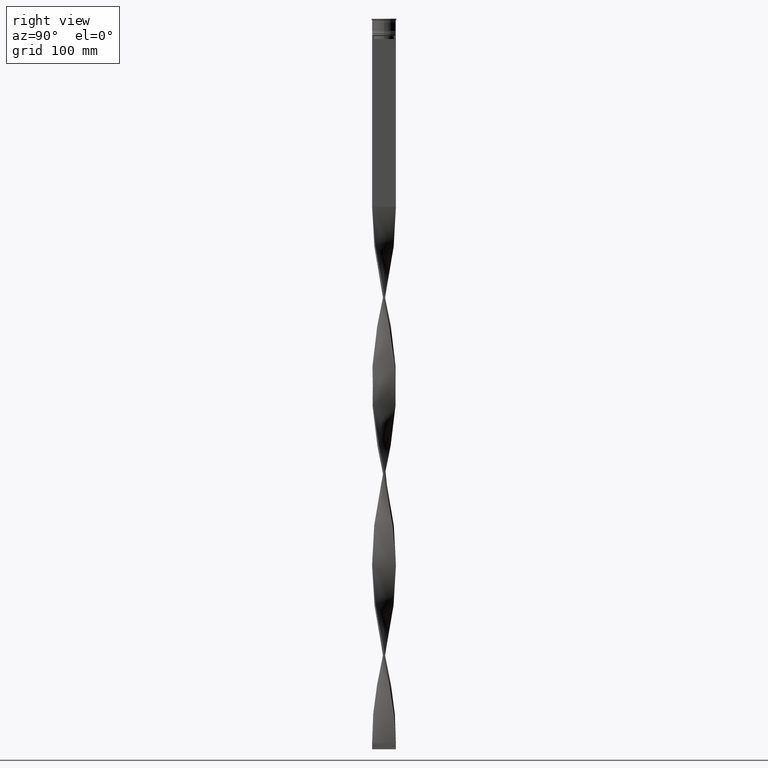
[diagram: clean part render]
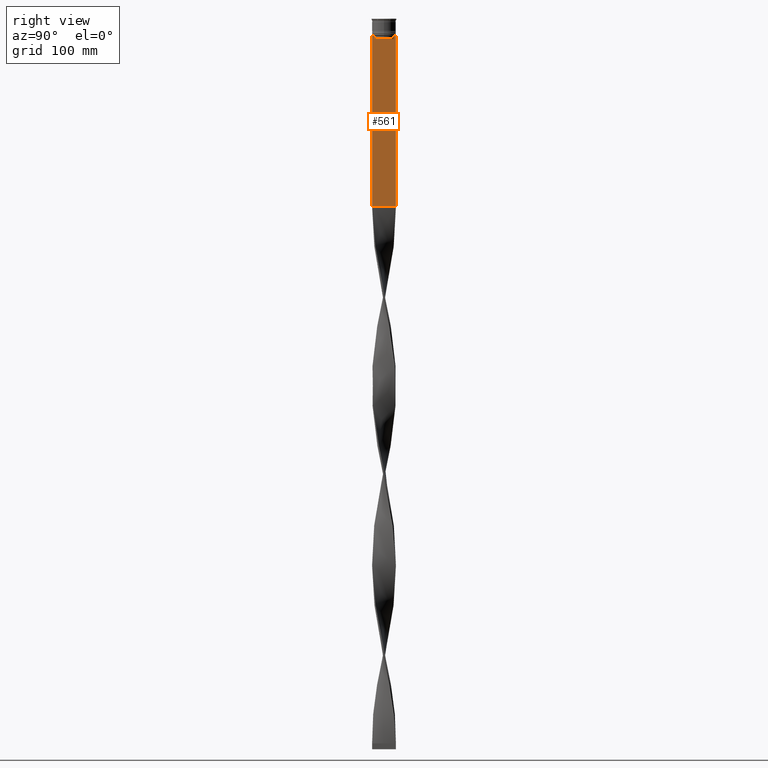
[diagram: same view with one face highlighted and labeled with its STEP entity id]
A machine part, right view. The second image highlights one B-rep face of the part: STEP entity #561.
In plain terms, the highlighted planar face has unit normal (-1, 0, 0).
Its self-contained STEP definition (entity closure, byte-faithful):
#85 = LINE ( 'NONE', #3238, #1562 ) ;
#136 = VERTEX_POINT ( 'NONE', #4509 ) ;
#170 = B_SPLINE_CURVE_WITH_KNOTS ( 'NONE', 3,
 ( #2295, #3666, #3709, #3328 ),
 .UNSPECIFIED., .F., .F.,
 ( 4, 4 ),
 ( 0.01512225952876174867, 0.01583070519299695222 ),
 .UNSPECIFIED. ) ;
#193 = ORIENTED_EDGE ( 'NONE', *, *, #4409, .T. ) ;
#317 = CARTESIAN_POINT ( 'NONE',  ( 0.7500000000000001110, 8.366450860430608927, 0.000000000000000000 ) ) ;
#366 = ORIENTED_EDGE ( 'NONE', *, *, #1819, .T. ) ;
#394 = CARTESIAN_POINT ( 'NONE',  ( 0.7500000000000001110, -8.868342573446296839, -14.00000000000000178 ) ) ;
#506 = VERTEX_POINT ( 'NONE', #1728 ) ;
#512 = CARTESIAN_POINT ( 'NONE',  ( 0.7500000000000001110, 9.871550030263739117, -14.00000000000000178 ) ) ;
#543 = VECTOR ( 'NONE', #4326, 1000.000000000000000 ) ;
#561 = ADVANCED_FACE ( 'NONE', ( #1041 ), #696, .F. ) ;
#583 = CARTESIAN_POINT ( 'NONE',  ( 0.7500000000000001110, -10.00000000000000533, -14.00000000000000178 ) ) ;
#597 = ORIENTED_EDGE ( 'NONE', *, *, #4111, .T. ) ;
#696 = PLANE ( 'NONE',  #1450 ) ;
#756 = VERTEX_POINT ( 'NONE', #1084 ) ;
#790 = CARTESIAN_POINT ( 'NONE',  ( 0.7500000000000001110, -10.00000000000000533, -14.00000000000000178 ) ) ;
#792 = EDGE_CURVE ( 'NONE', #756, #3053, #2509, .T. ) ;
#895 = VERTEX_POINT ( 'NONE', #3483 ) ;
#897 = EDGE_CURVE ( 'NONE', #3053, #895, #1604, .T. ) ;
#921 = VERTEX_POINT ( 'NONE', #512 ) ;
#925 = ORIENTED_EDGE ( 'NONE', *, *, #897, .T. ) ;
#1041 = FACE_OUTER_BOUND ( 'NONE', #3080, .T. ) ;
#1084 = CARTESIAN_POINT ( 'NONE',  ( 0.7500000000000001110, 8.366450860430608927, -14.50000000000000000 ) ) ;
#1088 = CARTESIAN_POINT ( 'NONE',  ( 0.7500000000000001110, 9.999999999999998224, -14.00000000000000178 ) ) ;
#1125 = ORIENTED_EDGE ( 'NONE', *, *, #792, .T. ) ;
#1210 = DIRECTION ( 'NONE',  ( 0.000000000000000000, -1.000000000000000000, 0.000000000000000000 ) ) ;
#1337 = CARTESIAN_POINT ( 'NONE',  ( 0.7500000000000001110, -10.00000000000000533, -157.9999999999999716 ) ) ;
#1382 = ORIENTED_EDGE ( 'NONE', *, *, #1982, .T. ) ;
#1450 = AXIS2_PLACEMENT_3D ( 'NONE', #4578, #2138, #3531 ) ;
#1507 = DIRECTION ( 'NONE',  ( 0.000000000000000000, -1.000000000000000000, 0.000000000000000000 ) ) ;
#1536 = CARTESIAN_POINT ( 'NONE',  ( 0.7500000000000001110, -9.871550030263739117, -14.00000000000000178 ) ) ;
#1562 = VECTOR ( 'NONE', #1507, 1000.000000000000000 ) ;
#1574 = VECTOR ( 'NONE', #1210, 1000.000000000000000 ) ;
#1577 = VERTEX_POINT ( 'NONE', #1088 ) ;
#1601 = LINE ( 'NONE', #2709, #4582 ) ;
#1604 = LINE ( 'NONE', #1926, #543 ) ;
#1656 = CARTESIAN_POINT ( 'NONE',  ( 0.7500000000000001110, -8.868342573446296839, -14.00000000000000178 ) ) ;
#1728 = CARTESIAN_POINT ( 'NONE',  ( 0.7500000000000001110, 8.868342573446296839, -14.00000000000000178 ) ) ;
#1814 = CARTESIAN_POINT ( 'NONE',  ( 0.7500000000000001110, -10.00000000000000533, -14.00000000000000178 ) ) ;
#1819 = EDGE_CURVE ( 'NONE', #4296, #1885, #85, .T. ) ;
#1828 = LINE ( 'NONE', #2574, #2539 ) ;
#1885 = VERTEX_POINT ( 'NONE', #583 ) ;
#1924 = DIRECTION ( 'NONE',  ( 0.000000000000000000, 0.000000000000000000, -1.000000000000000000 ) ) ;
#1926 = CARTESIAN_POINT ( 'NONE',  ( 0.7500000000000001110, 8.400000000000003908, -17.00000000000000000 ) ) ;
#1980 = DIRECTION ( 'NONE',  ( -0.000000000000000000, -0.000000000000000000, 1.000000000000000000 ) ) ;
#1982 = EDGE_CURVE ( 'NONE', #136, #3990, #2352, .T. ) ;
#2061 = VERTEX_POINT ( 'NONE', #2744 ) ;
#2138 = DIRECTION ( 'NONE',  ( -1.000000000000000000, 0.000000000000000000, 0.000000000000000000 ) ) ;
#2174 = VERTEX_POINT ( 'NONE', #3878 ) ;
#2259 = DIRECTION ( 'NONE',  ( 0.000000000000000000, -1.000000000000000000, 0.000000000000000000 ) ) ;
#2277 = CARTESIAN_POINT ( 'NONE',  ( 0.7500000000000001110, -8.701063080777121428, -14.16668447713511725 ) ) ;
#2295 = CARTESIAN_POINT ( 'NONE',  ( 0.7500000000000001110, 8.868342573446296839, -14.00000000000000178 ) ) ;
#2297 = EDGE_CURVE ( 'NONE', #1577, #2061, #2845, .T. ) ;
#2345 = EDGE_CURVE ( 'NONE', #895, #136, #2544, .T. ) ;
#2350 = CARTESIAN_POINT ( 'NONE',  ( 0.7500000000000001110, -8.533766903463440912, -14.33335220807192023 ) ) ;
#2352 = B_SPLINE_CURVE_WITH_KNOTS ( 'NONE', 3,
 ( #4092, #2350, #2277, #1656 ),
 .UNSPECIFIED., .F., .F.,
 ( 4, 4 ),
 ( 0.03866293624047253963, 0.03937282246709320616 ),
 .UNSPECIFIED. ) ;
#2426 = ORIENTED_EDGE ( 'NONE', *, *, #2842, .T. ) ;
#2509 = LINE ( 'NONE', #317, #2914 ) ;
#2516 = DIRECTION ( 'NONE',  ( 0.000000000000000000, 0.000000000000000000, -1.000000000000000000 ) ) ;
#2539 = VECTOR ( 'NONE', #3613, 1000.000000000000000 ) ;
#2544 = LINE ( 'NONE', #3934, #4496 ) ;
#2574 = CARTESIAN_POINT ( 'NONE',  ( 0.7500000000000001110, -10.00000000000000533, -14.00000000000000178 ) ) ;
#2630 = CARTESIAN_POINT ( 'NONE',  ( 0.7500000000000001110, 8.366450860430608927, -17.00000000000000000 ) ) ;
#2709 = CARTESIAN_POINT ( 'NONE',  ( 0.7500000000000001110, -10.00000000000000533, 6.056171120131581098 ) ) ;
#2744 = CARTESIAN_POINT ( 'NONE',  ( 0.7500000000000002220, 9.999999999999998224, -157.9999999999999716 ) ) ;
#2748 = ORIENTED_EDGE ( 'NONE', *, *, #2345, .T. ) ;
#2820 = VECTOR ( 'NONE', #2516, 1000.000000000000000 ) ;
#2842 = EDGE_CURVE ( 'NONE', #1885, #2174, #1601, .T. ) ;
#2845 = LINE ( 'NONE', #4237, #2820 ) ;
#2859 = DIRECTION ( 'NONE',  ( 0.000000000000000000, 0.000000000000000000, -1.000000000000000000 ) ) ;
#2887 = EDGE_CURVE ( 'NONE', #506, #756, #170, .T. ) ;
#2914 = VECTOR ( 'NONE', #2859, 1000.000000000000000 ) ;
#2932 = LINE ( 'NONE', #1814, #4005 ) ;
#3053 = VERTEX_POINT ( 'NONE', #2630 ) ;
#3080 = EDGE_LOOP ( 'NONE', ( #3340, #3320, #1125, #925, #2748, #1382, #597, #366, #2426, #3478, #3598, #193 ) ) ;
#3144 = DIRECTION ( 'NONE',  ( 0.000000000000000000, 1.000000000000000000, 0.000000000000000000 ) ) ;
#3238 = CARTESIAN_POINT ( 'NONE',  ( 0.7500000000000001110, -10.00000000000000533, -14.00000000000000178 ) ) ;
#3320 = ORIENTED_EDGE ( 'NONE', *, *, #2887, .T. ) ;
#3328 = CARTESIAN_POINT ( 'NONE',  ( 0.7500000000000001110, 8.366450860430608927, -14.50000000000000000 ) ) ;
#3340 = ORIENTED_EDGE ( 'NONE', *, *, #4414, .T. ) ;
#3461 = EDGE_CURVE ( 'NONE', #2174, #2061, #3980, .T. ) ;
#3478 = ORIENTED_EDGE ( 'NONE', *, *, #3461, .T. ) ;
#3483 = CARTESIAN_POINT ( 'NONE',  ( 0.7500000000000001110, -8.366450860430608927, -17.00000000000000000 ) ) ;
#3531 = DIRECTION ( 'NONE',  ( 0.000000000000000000, 0.000000000000000000, 1.000000000000000000 ) ) ;
#3579 = LINE ( 'NONE', #790, #1574 ) ;
#3598 = ORIENTED_EDGE ( 'NONE', *, *, #2297, .F. ) ;
#3613 = DIRECTION ( 'NONE',  ( 0.000000000000000000, -1.000000000000000000, 0.000000000000000000 ) ) ;
#3666 = CARTESIAN_POINT ( 'NONE',  ( 0.7500000000000001110, 8.701063075415250481, -14.16668448247791545 ) ) ;
#3709 = CARTESIAN_POINT ( 'NONE',  ( 0.7500000000000001110, 8.533766897779925031, -14.33335221373273605 ) ) ;
#3878 = CARTESIAN_POINT ( 'NONE',  ( 0.7500000000000001110, -10.00000000000000533, -157.9999999999999716 ) ) ;
#3934 = CARTESIAN_POINT ( 'NONE',  ( 0.7500000000000001110, -8.366450860430608927, 0.000000000000000000 ) ) ;
#3980 = LINE ( 'NONE', #1337, #4504 ) ;
#3990 = VERTEX_POINT ( 'NONE', #394 ) ;
#4005 = VECTOR ( 'NONE', #2259, 1000.000000000000000 ) ;
#4092 = CARTESIAN_POINT ( 'NONE',  ( 0.7500000000000001110, -8.366450860430608927, -14.50000000000000000 ) ) ;
#4111 = EDGE_CURVE ( 'NONE', #3990, #4296, #1828, .T. ) ;
#4237 = CARTESIAN_POINT ( 'NONE',  ( 0.7500000000000001110, 9.999999999999998224, 6.056171120131581098 ) ) ;
#4296 = VERTEX_POINT ( 'NONE', #1536 ) ;
#4326 = DIRECTION ( 'NONE',  ( 0.000000000000000000, -1.000000000000000000, 0.000000000000000000 ) ) ;
#4409 = EDGE_CURVE ( 'NONE', #1577, #921, #2932, .T. ) ;
#4414 = EDGE_CURVE ( 'NONE', #921, #506, #3579, .T. ) ;
#4496 = VECTOR ( 'NONE', #1980, 1000.000000000000000 ) ;
#4504 = VECTOR ( 'NONE', #3144, 1000.000000000000000 ) ;
#4509 = CARTESIAN_POINT ( 'NONE',  ( 0.7500000000000001110, -8.366450860430608927, -14.50000000000000000 ) ) ;
#4578 = CARTESIAN_POINT ( 'NONE',  ( 0.7500000000000001110, -10.00000000000000533, 6.056171120131581098 ) ) ;
#4582 = VECTOR ( 'NONE', #1924, 1000.000000000000000 ) ;